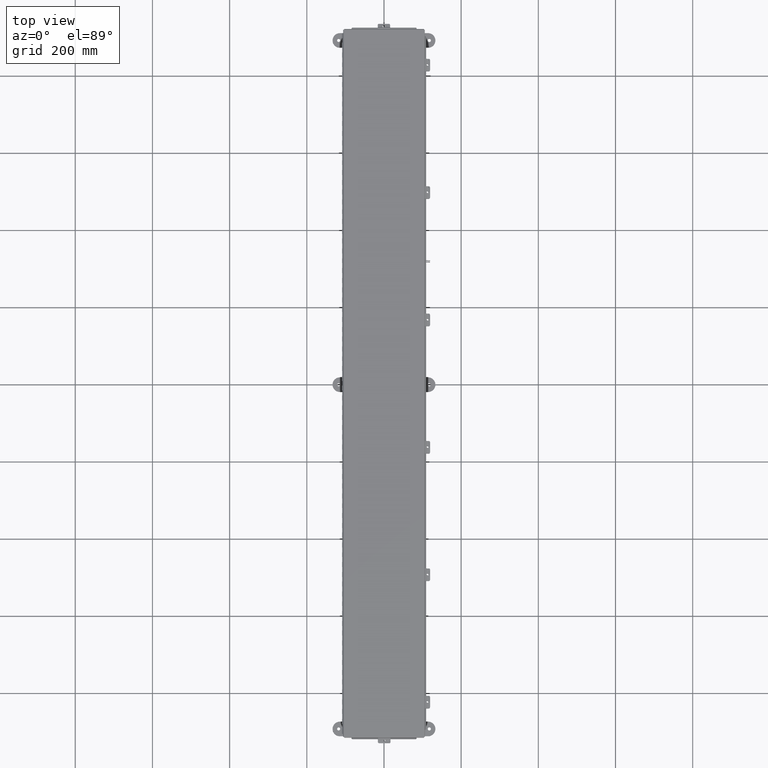
[diagram: clean part render]
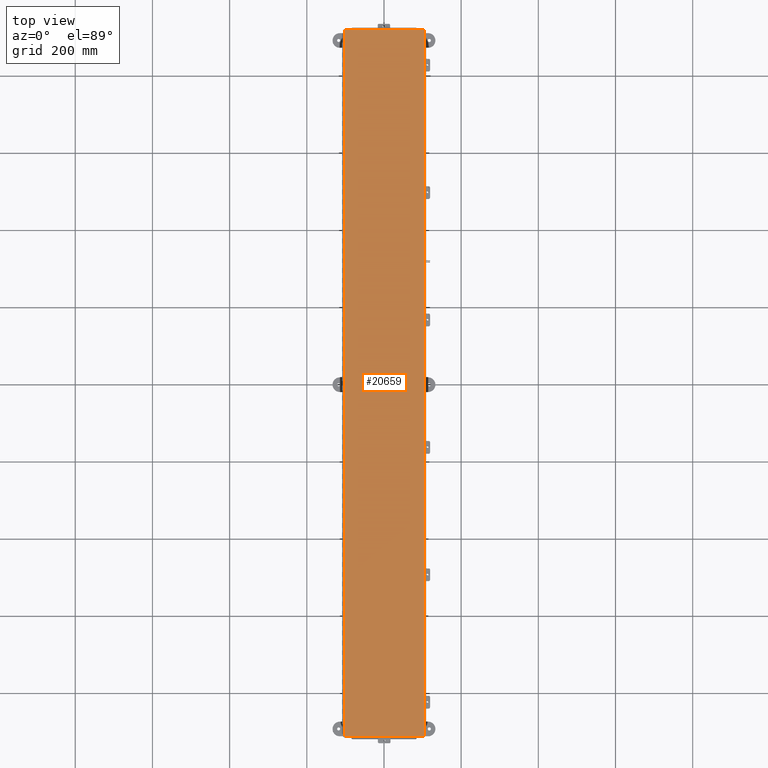
[diagram: same view with one face highlighted and labeled with its STEP entity id]
A machine part, top view. The second image highlights one B-rep face of the part: STEP entity #20659.
In plain terms, the highlighted planar face has unit normal (-0, -0, 1).
Its self-contained STEP definition (entity closure, byte-faithful):
#1371 = DIRECTION ( 'NONE',  ( 1.918070407330989000E-028, 1.000000000000000000, 7.193425379484101400E-029 ) ) ;
#3781 = EDGE_CURVE ( 'NONE', #46336, #34042, #29117, .T. ) ;
#4483 = CARTESIAN_POINT ( 'NONE',  ( -4.068550000000028500, -36.06855000000000900, -0.07470000000000125200 ) ) ;
#5350 = CARTESIAN_POINT ( 'NONE',  ( -4.068550000000028500, -36.07447893218814300, -0.07470000000000125200 ) ) ;
#5673 = VECTOR ( 'NONE', #37252, 39.37007874015748100 ) ;
#6907 = LINE ( 'NONE', #41167, #5673 ) ;
#10204 = VECTOR ( 'NONE', #44180, 39.37007874015748100 ) ;
#11029 = EDGE_CURVE ( 'NONE', #16602, #46336, #23761, .T. ) ;
#11435 = LINE ( 'NONE', #40278, #10204 ) ;
#11764 = DIRECTION ( 'NONE',  ( 1.000000000000000000, 1.919056483462499400E-028, -0.0000000000000000000 ) ) ;
#12119 = VECTOR ( 'NONE', #1371, 39.37007874015748100 ) ;
#12228 = FACE_OUTER_BOUND ( 'NONE', #35428, .T. ) ;
#14090 = PLANE ( 'NONE',  #47728 ) ;
#16602 = VERTEX_POINT ( 'NONE', #4483 ) ;
#17183 = CARTESIAN_POINT ( 'NONE',  ( 4.068550000000028500, 36.06854999999998800, -0.07470000000000015500 ) ) ;
#17497 = VECTOR ( 'NONE', #11764, 39.37007874015748100 ) ;
#17542 = ORIENTED_EDGE ( 'NONE', *, *, #38938, .T. ) ;
#18017 = DIRECTION ( 'NONE',  ( 1.379039709435212500E-056, -7.186029808497612900E-029, -1.000000000000000000 ) ) ;
#19697 = CARTESIAN_POINT ( 'NONE',  ( -4.074478932188162300, 36.06854999999999500, -0.07470000000000015500 ) ) ;
#20178 = VERTEX_POINT ( 'NONE', #30357 ) ;
#20659 = ADVANCED_FACE ( 'NONE', ( #12228 ), #14090, .T. ) ;
#21384 = CARTESIAN_POINT ( 'NONE',  ( -4.068550000000028500, 36.06854999999999500, -0.07470000000000015500 ) ) ;
#23761 = LINE ( 'NONE', #5350, #12119 ) ;
#23973 = ORIENTED_EDGE ( 'NONE', *, *, #11029, .T. ) ;
#29117 = LINE ( 'NONE', #19697, #17497 ) ;
#30357 = CARTESIAN_POINT ( 'NONE',  ( 4.068550000000029400, -36.06855000000000900, -0.07470000000000015500 ) ) ;
#34042 = VERTEX_POINT ( 'NONE', #17183 ) ;
#34691 = ORIENTED_EDGE ( 'NONE', *, *, #3781, .T. ) ;
#35428 = EDGE_LOOP ( 'NONE', ( #34691, #43287, #17542, #23973 ) ) ;
#37252 = DIRECTION ( 'NONE',  ( -1.000000000000000000, -1.919056483462499400E-028, -0.0000000000000000000 ) ) ;
#38938 = EDGE_CURVE ( 'NONE', #20178, #16602, #6907, .T. ) ;
#40278 = CARTESIAN_POINT ( 'NONE',  ( 4.068550000000028500, 36.07447893218812900, -0.07470000000000015500 ) ) ;
#41167 = CARTESIAN_POINT ( 'NONE',  ( 4.074478932188163100, -36.06855000000000900, -0.07470000000000015500 ) ) ;
#41419 = CARTESIAN_POINT ( 'NONE',  ( 0.0000000000000000000, 0.0000000000000000000, -0.07470000000000015500 ) ) ;
#41565 = EDGE_CURVE ( 'NONE', #34042, #20178, #11435, .T. ) ;
#43287 = ORIENTED_EDGE ( 'NONE', *, *, #41565, .T. ) ;
#44180 = DIRECTION ( 'NONE',  ( -1.918070407330989000E-028, -1.000000000000000000, -7.193425379484101400E-029 ) ) ;
#45321 = DIRECTION ( 'NONE',  ( -1.000000000000000000, -1.919056483462499100E-028, 0.0000000000000000000 ) ) ;
#46336 = VERTEX_POINT ( 'NONE', #21384 ) ;
#47728 = AXIS2_PLACEMENT_3D ( 'NONE', #41419, #18017, #45321 ) ;